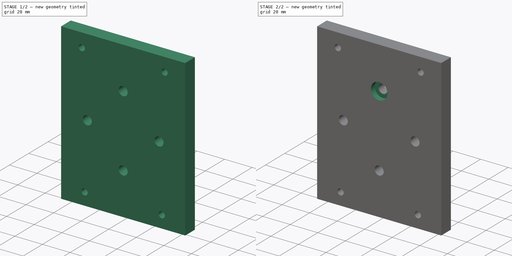
[diagram: build sequence overview — one tinted view per stage of 2, left to right]
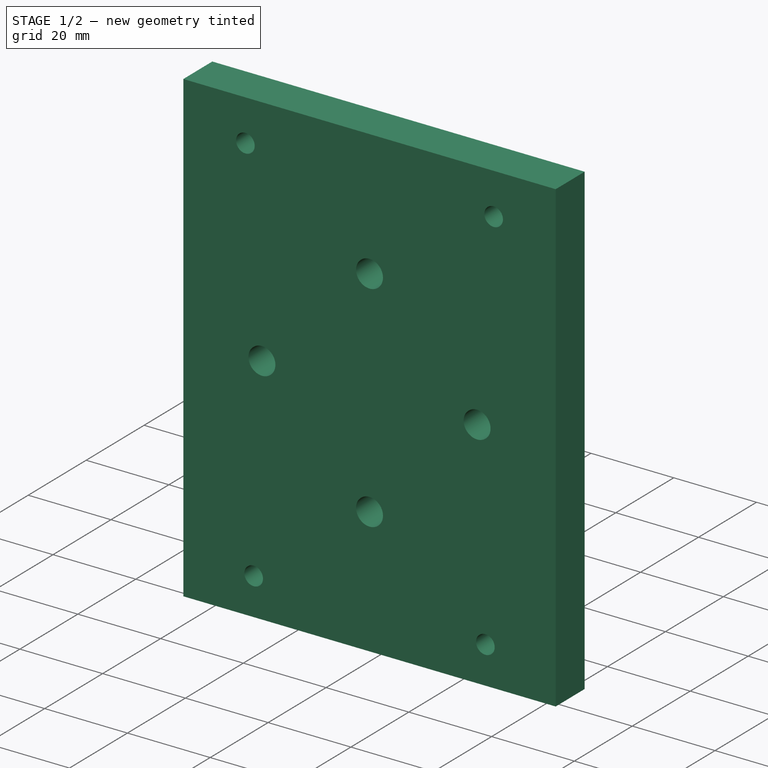
[diagram: stage 1 of 2 — iso view after this stage's code; geometry added in this stage tinted green]
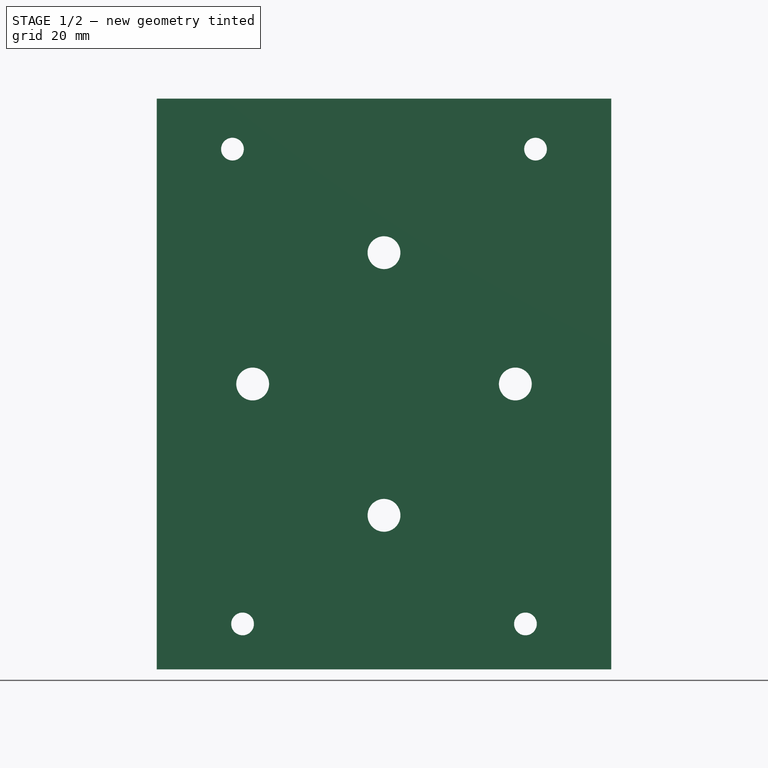
[diagram: stage 1 of 2 — front view after this stage's code; geometry added in this stage tinted green]
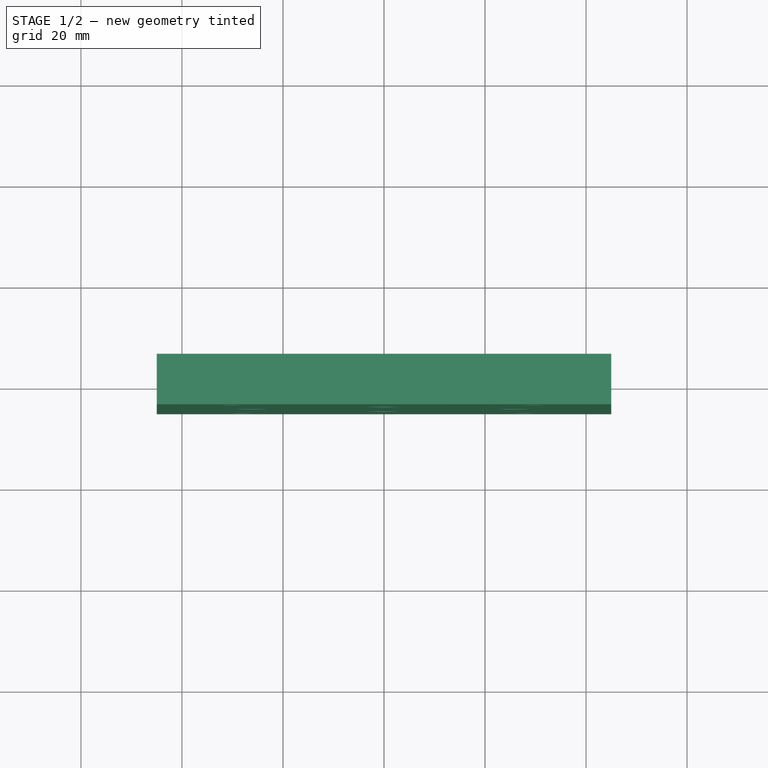
[diagram: stage 1 of 2 — top view after this stage's code; geometry added in this stage tinted green]
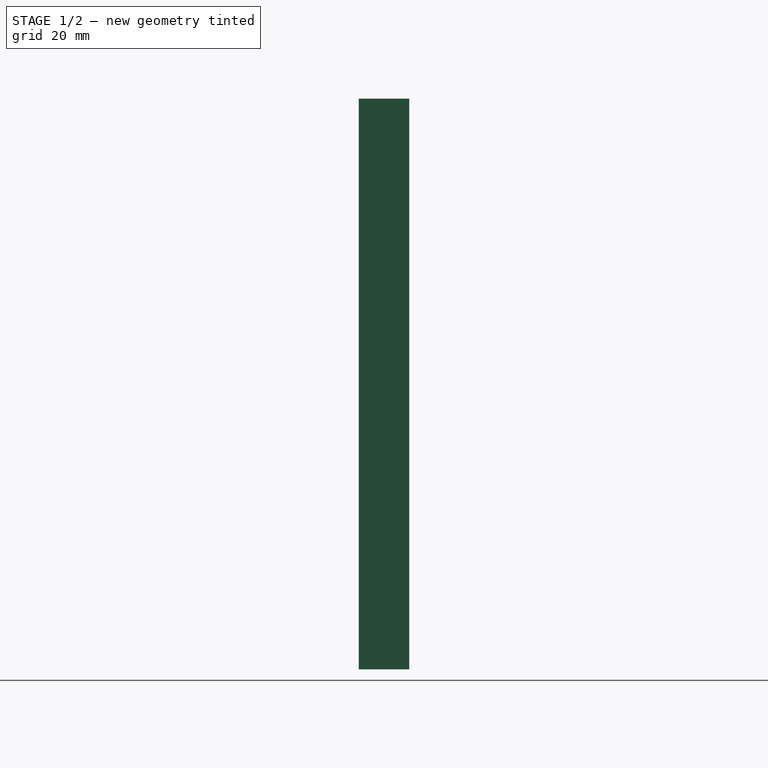
[diagram: stage 1 of 2 — right view after this stage's code; geometry added in this stage tinted green]
FCSTD DOCUMENT  (FreeCAD 0.16R6704 (Git))
Label: Adapterplatte Proxxon
License: All rights reserved
LicenseURL: http://en.wikipedia.org/wiki/All_rights_reserved
objects: Drawing::FeatureViewPython×24, Sketcher::SketchObject×3, PartDesign::Pocket×2, Drawing::FeatureViewPart×2, PartDesign::Pad×1, Drawing::FeaturePage×1
note: 9 computed .brp shape members not serialized (recipe doc carries the construction recipe); baked Part::Feature solids carry a one-line shape summary decoded from their .brp

FEATURE [Sketcher::SketchObject] Sketch
  sketch-geometry (4):
    g0: LineSegment StartX=-45 StartY=5 StartZ=0 EndX=45 EndY=5 EndZ=0
    g1: LineSegment StartX=45 StartY=5 StartZ=0 EndX=45 EndY=-5 EndZ=0
    g2: LineSegment StartX=45 StartY=-5 StartZ=0 EndX=-45 EndY=-5 EndZ=0
    g3: LineSegment StartX=-45 StartY=-5 StartZ=0 EndX=-45 EndY=5 EndZ=0
  constraints (12):
    c: Coincident(g0,g1)
    c: Coincident(g1,g2)
    c: Coincident(g2,g3)
    c: Coincident(g3,g0)
    c: Horizontal(g0)
    c: Horizontal(g2)
    c: Vertical(g1)
    c: Vertical(g3)
    c: DistanceX(g0,g0) = 90
    c: DistanceY(g1,g1) = 10
    c: Symmetric(g0,g0,g-2)
    c: Symmetric(g2,g0,g-1)
FEATURE [PartDesign::Pad] Pad
  Length = 113
  Length2 = 100
  Sketch = -> Sketch
  Type = 0
FEATURE [Sketcher::SketchObject] Sketch001
  ExternalGeometry = -> [Pad]
  Placement = pos=(0,-5,0) rot=(1,0,0;1.5708rad)
  Support = -> Pad [Face3]
  sketch-geometry (11):
    g0: LineSegment [constr] StartX=-30 StartY=103 StartZ=0 EndX=30 EndY=103 EndZ=0
    g1: LineSegment [constr] StartX=-28 StartY=9 StartZ=0 EndX=28 EndY=9 EndZ=0
    g2: Circle CenterX=-30 CenterY=103 CenterZ=0 NormalX=0 NormalY=0 NormalZ=1 Radius=2.25
    g3: Circle CenterX=30 CenterY=103 CenterZ=0 NormalX=0 NormalY=0 NormalZ=1 Radius=2.25
    g4: Circle CenterX=28 CenterY=9 CenterZ=0 NormalX=0 NormalY=0 NormalZ=1 Radius=2.25
    g5: Circle CenterX=-28 CenterY=9 CenterZ=0 NormalX=0 NormalY=0 NormalZ=1 Radius=2.25
    g6: LineSegment [constr] StartX=-45 StartY=56.5 StartZ=0 EndX=45 EndY=56.5 EndZ=0
    g7: Circle CenterX=0 CenterY=82.5 CenterZ=0 NormalX=0 NormalY=0 NormalZ=1 Radius=3.25
    g8: Circle CenterX=0 CenterY=30.5 CenterZ=0 NormalX=0 NormalY=0 NormalZ=1 Radius=3.25
    g9: Circle CenterX=26 CenterY=56.5 CenterZ=0 NormalX=0 NormalY=0 NormalZ=1 Radius=3.25
    g10: Circle CenterX=-26 CenterY=56.5 CenterZ=0 NormalX=0 NormalY=0 NormalZ=1 Radius=3.25
  constraints (29):
    c: Symmetric(g0,g0,g-2)
    c: Symmetric(g1,g1,g-2)
    c: DistanceX(g-1,g0) = 30
    c: DistanceX(g-1,g1) = 28
    c: DistanceY(g-1,g1) = 9
    c: Coincident(g2,g0)
    c: Coincident(g3,g0)
    c: Coincident(g4,g1)
    c: Coincident(g5,g1)
    c: Radius(g4) = 2.25
    c: Equal(g4,g5)
    c: Equal(g4,g3)
    c: Equal(g4,g2)
    c: DistanceY(g0,g-3) = 10
    c: Symmetric(g-3,g-3,g6)
    c: PointOnObject(g6,g-3)
    c: Symmetric(g6,g6,g-2)
    c: PointOnObject(g7,g-2)
    c: PointOnObject(g8,g-2)
    c: PointOnObject(g9,g6)
    c: PointOnObject(g10,g6)
    c: Radius(g10) = 3.25
    c: Equal(g10,g7)
    c: Equal(g10,g8)
    c: Equal(g10,g9)
    c: Symmetric(g8,g7,g6)
    c: Symmetric(g10,g9,g-2)
    c: DistanceY(g8,g6) = 26
    c: DistanceX(g10,g-1) = 26
FEATURE [PartDesign::Pocket] Pocket
  Length = 9
  Sketch = -> Sketch001
  Type = 1
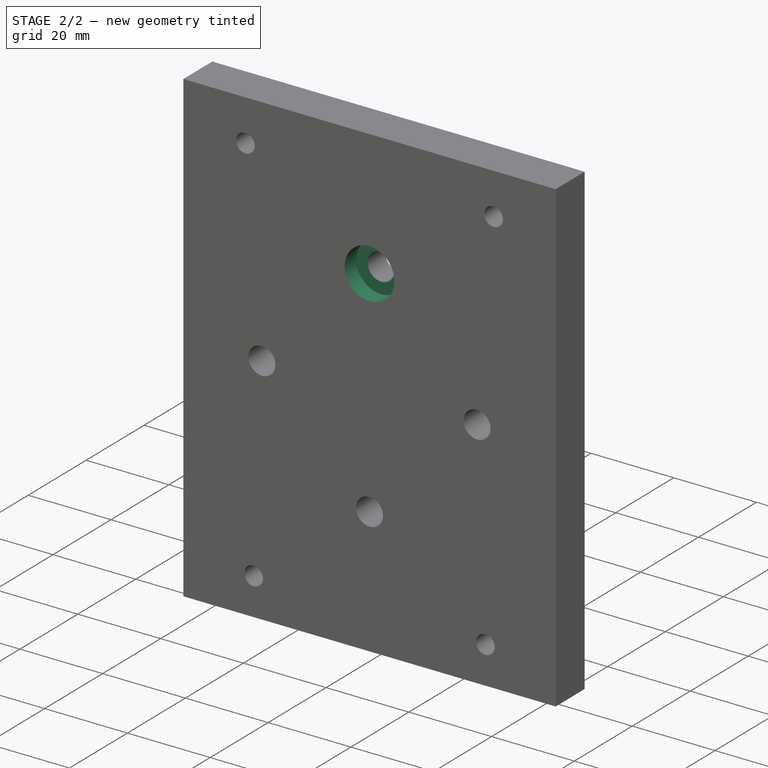
[diagram: stage 2 of 2 — iso view after this stage's code; geometry added in this stage tinted green]
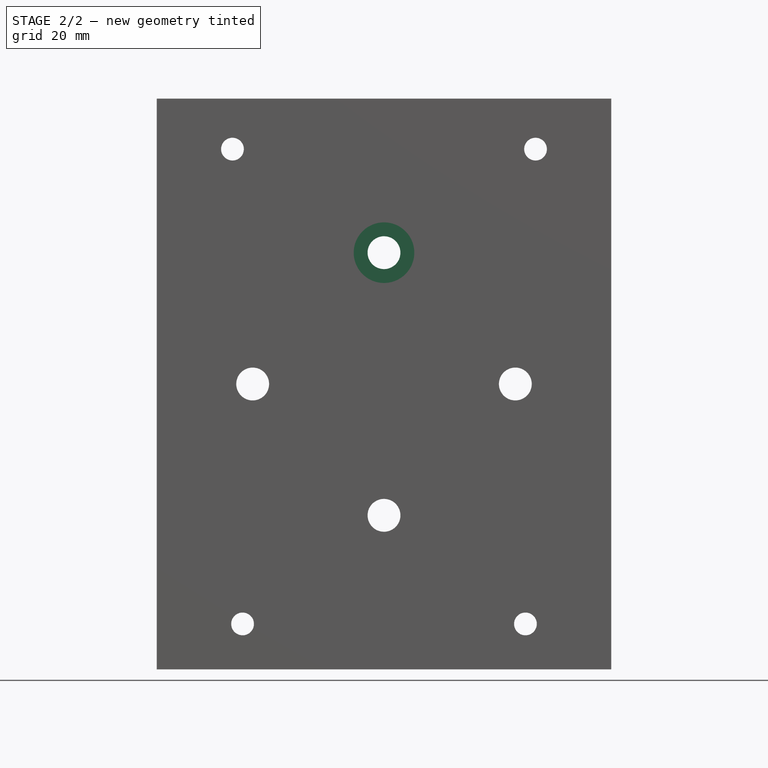
[diagram: stage 2 of 2 — front view after this stage's code; geometry added in this stage tinted green]
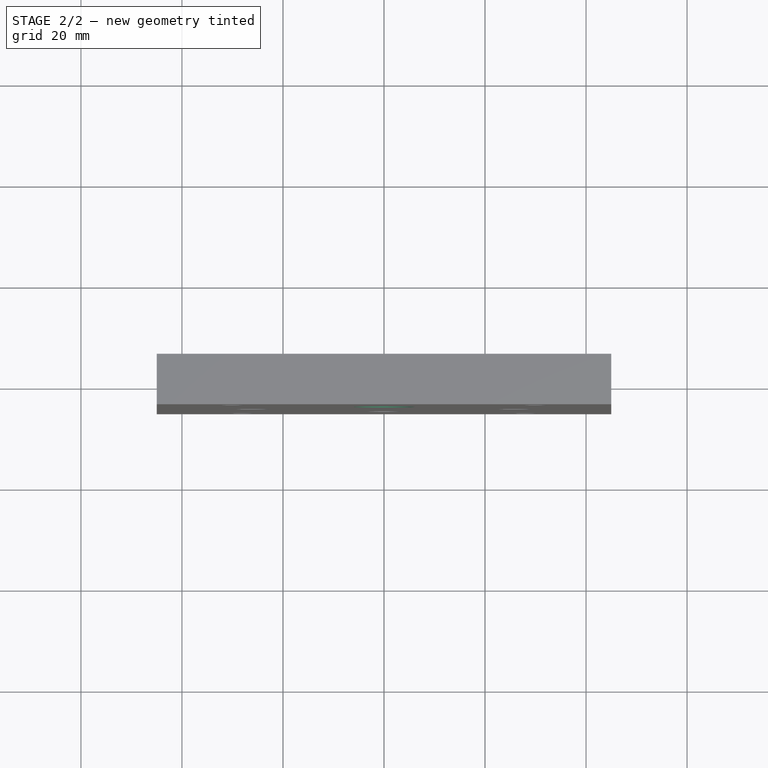
[diagram: stage 2 of 2 — top view after this stage's code; geometry added in this stage tinted green]
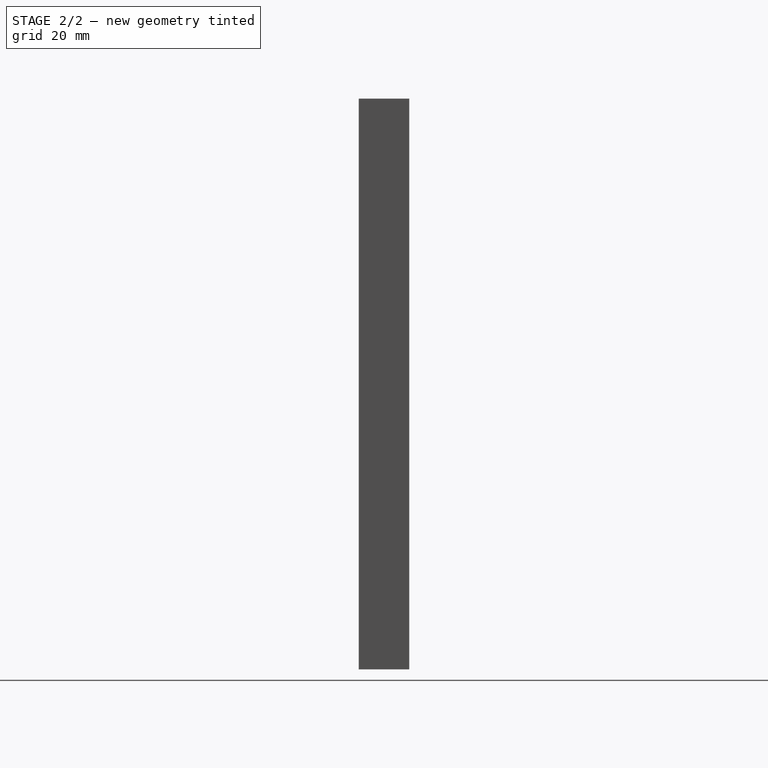
[diagram: stage 2 of 2 — right view after this stage's code; geometry added in this stage tinted green]
FEATURE [Sketcher::SketchObject] Sketch002
  ExternalGeometry = -> [Pocket]
  Placement = pos=(0,-5,0) rot=(1,0,0;1.5708rad)
  Support = -> Pocket [Face14]
  sketch-geometry (1):
    g0: Circle CenterX=0 CenterY=82.5 CenterZ=0 NormalX=0 NormalY=0 NormalZ=1 Radius=6
  constraints (2):
    c: Coincident(g0,g-3)
    c: Radius(g0) = 6
FEATURE [PartDesign::Pocket] Pocket001
  Length = 4
  Sketch = -> Sketch002
  Type = 0
FEATURE [Drawing::FeatureViewPart] Ortho  label="Ortho_0_0"
  Direction = (0,-1,0)
  HiddenWidth = 0.15
  LineWidth = 0.35
  Rotation = 90
  Scale = 1.5
  ShowHiddenLines = true
  ShowSmoothLines = false
  Source = -> Pocket001
  Tolerance = 0.05
  ViewResult = <g id="Ortho_0_0"\n   transform="rotate(90,116.5,189.75) translate(116.5,189.75) scale(1.5,1.5)"\n  >\n<g   stroke="rgb(0, 0, 0)"\n   stroke-width="0.1"\n   stroke-linecap="butt"\n   stroke-linejoin="miter"\n   stroke-dasharray="0.2,0.1"\n   fill="none"\n   transform="scale(1,-1)"\n  >\n<path id= "1" d=" M 0 -45 L -113 -45 " />\n<path id= "2" d=" M 0 -45 L 0 45 " />\n<path id= "3" d=" M -113 -45 L -113 45 " />\n<path id= "4" d=" M 0 45 L -113 45 " />\n<circle cx ="-103" cy ="30" r ="2.25" /><circle cx ="-56.5" cy ="26" r ="3.25" /><circle cx ="-9" cy ="28" r ="2.25" /><circle cx ="-56.5" cy ="-26" r ="3.25" /><circle cx ="-30.5" cy ="0" r ="3.25" /><circle cx ="-103" cy ="-30" r ="2.25" /><circle cx ="-82.5" cy ="0" r ="3.25" /><circle cx ="-9" cy ="-28" r ="2.25" /><circle cx ="-82.5" cy ="0" r ="6" /></g>\n<g   stroke="rgb(0, 0, 0)"\n   stroke-width="0.233333"\n   stroke-linecap="butt"\n   stroke-linejoin="miter"\n   fill="none"\n   transform="scale(1,-1)"\n  >\n<path id= "1" d=" M 0 -45 L -113 -45 " />\n<path id= "2" d=" M 0 45 L 0 -45 " />\n<path id= "3" d=" M -113 45 L -113 -45 " />\n<path id= "4" d=" M 0 45 L -113 45 " />\n<circle cx ="-103" cy ="30" r ="2.25" /><circle cx ="-56.5" cy ="26" r ="3.25" /><circle cx ="-9" cy ="28" r ="2.25" /><circle cx ="-56.5" cy ="-26" r ="3.25" /><circle cx ="-30.5" cy ="0" r ="3.25" /><circle cx ="-103" cy ="-30" r ="2.25" /><circle cx ="-82.5" cy ="0" r ="3.25" /><circle cx ="-9" cy ="-28" r ="2.25" /><circle cx ="-82.5" cy ="0" r ="6" /></g>\n</g>
  Visible = true
  X = 116.5
  Y = 189.75
FEATURE [Drawing::FeatureViewPart] Ortho001  label="Ortho_1_0"
  Direction = (1,0,0)
  HiddenWidth = 0.15
  LineWidth = 0.35
  Rotation = -90
  Scale = 1.5
  ShowHiddenLines = true
  ShowSmoothLines = false
  Source = -> Pocket001
  Tolerance = 0.05
  ViewResult = <blob: 12010 chars omitted>
  Visible = true
  X = 240.5
  Y = 189.75
FEATURE [Drawing::FeatureViewPython] dim001  # drawing view (typed FeaturePython)
  Rotation = 0
  ViewResult = <g> \n  <line x1="184.000000" y1="18.250000" x2="184.000000" y2="10.384620" style="stroke:rgb(0,0,255);stroke-width:0.30" />\n<line x1="49.000000" y1="18.250000" x2="49.000000" y2="10.384620" style="stroke:rgb(0,0,255);stroke-width:0.30" />\n<line x1="184.000000" y1="11.384620" x2="49.000000" y2="11.384620" style="stroke:rgb(0,0,255);stroke-width:0.30" /> \n  <polygon points="49.000000,11.384620 52.000000,12.384620 53.000000,11.384620 52.000000,10.384620" style="fill:rgb(0,0,255);stroke:rgb(0,0,255);stroke-width:0" /><polygon points="184.000000,11.384620 181.000000,10.384620 180.000000,11.384620 181.000000,12.384620" style="fill:rgb(0,0,255);stroke:rgb(0,0,255);stroke-width:0" /> \n  <text x="116.500000" y="9.384620" font-family="Verdana" font-size="3.6" fill="rgb(0,0,255)" text-anchor="middle" transform="rotate(0.000000 116.500000,9.384620)" >90</text> </g>
  Visible = true
  X = 0
  Y = 0
  arrowL1 = 3
  arrowL2 = 1
  arrowW = 2
  arrow_scheme = 0
  autoPlaceOffset = 2
  autoPlaceText = true
  click1_x = 80.9375
  click1_y = 11.3846
  click2_x = 80.9375
  click2_y = 11.3846
  comma_decimal_place = false
  dimension_line_overshoot = 1
  gap_datum_points = 2
  halfDimension_linear = false
  lineColor = rgb(0,0,255)
  strokeWidth = 0.3
  textFormat_linear = %(value)3.3f
  textRenderer_color = rgb(0,0,255)
  textRenderer_family = Verdana
  textRenderer_size = 3.6
  unit_custom_scale = 1
  unit_scheme = 0
FEATURE [Drawing::FeatureViewPython] dim002  # drawing view (typed FeaturePython)
  Rotation = 0
  ViewResult = <g> \n  <line x1="47.000000" y1="189.750000" x2="33.153860" y2="189.750000" style="stroke:rgb(0,0,255);stroke-width:0.30" />\n<line x1="47.000000" y1="20.250000" x2="33.153860" y2="20.250000" style="stroke:rgb(0,0,255);stroke-width:0.30" />\n<line x1="34.153860" y1="189.750000" x2="34.153860" y2="20.250000" style="stroke:rgb(0,0,255);stroke-width:0.30" /> \n  <polygon points="34.153860,20.250000 33.153860,23.250000 34.153860,24.250000 35.153860,23.250000" style="fill:rgb(0,0,255);stroke:rgb(0,0,255);stroke-width:0" /><polygon points="34.153860,189.750000 35.153860,186.750000 34.153860,185.750000 33.153860,186.750000" style="fill:rgb(0,0,255);stroke:rgb(0,0,255);stroke-width:0" /> \n  <text x="32.153860" y="105.000000" font-family="Verdana" font-size="3.6" fill="rgb(0,0,255)" text-anchor="middle" transform="rotate(-90.000000 32.153860,105.000000)" >113</text> </g>
  Visible = true
  X = 0
  Y = 0
  arrowL1 = 3
  arrowL2 = 1
  arrowW = 2
  arrow_scheme = 0
  autoPlaceOffset = 2
  autoPlaceText = true
  click1_x = 34.1539
  click1_y = 43.9375
  click2_x = 34.1539
  click2_y = 43.9375
  comma_decimal_place = false
  dimension_line_overshoot = 1
  gap_datum_points = 2
  halfDimension_linear = false
  lineColor = rgb(0,0,255)
  strokeWidth = 0.3
  textFormat_linear = %(value)3.3f
  textRenderer_color = rgb(0,0,255)
  textRenderer_family = Verdana
  textRenderer_size = 3.6
  unit_custom_scale = 1
  unit_scheme = 0
FEATURE [Drawing::FeatureViewPython] dim003  # drawing view (typed FeaturePython)
  Rotation = 0
  ViewResult = <g> \n  <line x1="248.000000" y1="18.250000" x2="248.000000" y2="12.341352" style="stroke:rgb(0,0,255);stroke-width:0.30" />\n<line x1="233.000000" y1="18.250000" x2="233.000000" y2="12.341352" style="stroke:rgb(0,0,255);stroke-width:0.30" />\n<line x1="248.000000" y1="13.341352" x2="233.000000" y2="13.341352" style="stroke:rgb(0,0,255);stroke-width:0.30" /> \n  <polygon points="233.000000,13.341352 236.000000,14.341352 237.000000,13.341352 236.000000,12.341352" style="fill:rgb(0,0,255);stroke:rgb(0,0,255);stroke-width:0" /><polygon points="248.000000,13.341352 245.000000,12.341352 244.000000,13.341352 245.000000,14.341352" style="fill:rgb(0,0,255);stroke:rgb(0,0,255);stroke-width:0" /> \n  <text x="240.500000" y="11.341352" font-family="Verdana" font-size="3.6" fill="rgb(0,0,255)" text-anchor="middle" transform="rotate(0.000000 240.500000,11.341352)" >10</text> </g>
  Visible = true
  X = 0
  Y = 0
  arrowL1 = 3
  arrowL2 = 1
  arrowW = 2
  arrow_scheme = 0
  autoPlaceOffset = 2
  autoPlaceText = true
  click1_x = 238.721
  click1_y = 13.3414
  click2_x = 238.721
  click2_y = 13.3414
  comma_decimal_place = false
  dimension_line_overshoot = 1
  gap_datum_points = 2
  halfDimension_linear = false
  lineColor = rgb(0,0,255)
  strokeWidth = 0.3
  textFormat_linear = %(value)3.3f
  textRenderer_color = rgb(0,0,255)
  textRenderer_family = Verdana
  textRenderer_size = 3.6
  unit_custom_scale = 1
  unit_scheme = 0
FEATURE [Drawing::FeatureViewPython] centerLines001  # drawing view (typed FeaturePython)
  Rotation = 0
  ViewResult = <g transform="scale(1.500000,1.500000)" stroke="rgb(0,0,255)"  stroke-width="0.200000" > <path d="M 47.666667,23.500000 L 47.666667,23.599369 "/>\n<path d="M 47.666667,23.500000 L 49.000000,23.500000 M 50.333333,23.500000 L 54.333333,23.500000 M 55.666667,23.500000 L 57.000000,23.500000 M 58.333333,23.500000 L 62.333333,23.500000 M 63.666667,23.500000 L 65.000000,23.500000 M 66.333333,23.500000 L 70.333333,23.500000 M 71.666667,23.500000 L 73.000000,23.500000 M 74.333333,23.500000 L 78.333333,23.500000 M 79.666667,23.500000 L 81.000000,23.500000 M 82.333333,23.500000 L 86.333333,23.500000 M 87.666667,23.500000 L 89.000000,23.500000 M 90.333333,23.500000 L 94.333333,23.500000 M 95.666667,23.500000 L 97.000000,23.500000 M 98.333333,23.500000 L 102.333333,23.500000 M 103.666667,23.500000 L 105.000000,23.500000 M 106.333333,23.500000 L 108.035301,23.500000 "/>\n<path d="M 47.666667,23.500000 L 47.666667,23.362189 "/>\n<path d="M 47.666667,23.500000 L 48.147456,23.500000 "/> </g> 
  Visible = true
  X = 0
  Y = 0
  centerLine_color = rgb(0,0,255)
  centerLine_len_dash = 6
  centerLine_len_dot = 2
  centerLine_len_gap = 2
  centerLine_width = 0.3
  click1_x = 162.053
  click1_y = 35.3991
  click2_x = 72.2212
  click2_y = 35.0433
FEATURE [Drawing::FeatureViewPython] centerLines002  # drawing view (typed FeaturePython)
  Rotation = 0
  ViewResult = <g transform="scale(1.500000,1.500000)" stroke="rgb(0,0,255)"  stroke-width="0.200000" > <path d="M 49.666667,117.500000 L 49.666667,117.048125 "/>\n<path d="M 49.666667,117.500000 L 51.000000,117.500000 M 52.333333,117.500000 L 56.333333,117.500000 M 57.666667,117.500000 L 59.000000,117.500000 M 60.333333,117.500000 L 64.333333,117.500000 M 65.666667,117.500000 L 67.000000,117.500000 M 68.333333,117.500000 L 72.333333,117.500000 M 73.666667,117.500000 L 75.000000,117.500000 M 76.333333,117.500000 L 80.333333,117.500000 M 81.666667,117.500000 L 83.000000,117.500000 M 84.333333,117.500000 L 88.333333,117.500000 M 89.666667,117.500000 L 91.000000,117.500000 M 92.333333,117.500000 L 96.333333,117.500000 M 97.666667,117.500000 L 99.000000,117.500000 M 100.333333,117.500000 L 104.333333,117.500000 M 105.666667,117.500000 L 106.256454,117.500000 "/>\n<path d="M 49.666667,117.500000 L 49.666667,117.285305 "/>\n<path d="M 49.666667,117.500000 L 49.214764,117.500000 "/> </g> 
  Visible = true
  X = 0
  Y = 0
  centerLine_color = rgb(0,0,255)
  centerLine_len_dash = 6
  centerLine_len_dot = 2
  centerLine_len_gap = 2
  centerLine_width = 0.3
  click1_x = 159.385
  click1_y = 175.572
  click2_x = 73.8221
  click2_y = 175.928
FEATURE [Drawing::FeatureViewPython] centerLines003  # drawing view (typed FeaturePython)
  Rotation = 0
  ViewResult = <g transform="scale(1.500000,1.500000)" stroke="rgb(0,0,255)"  stroke-width="0.200000" > <path d="M 51.666667,70.000000 L 51.666667,69.375029 "/>\n<path d="M 51.666667,70.000000 L 53.000000,70.000000 M 54.333333,70.000000 L 58.333333,70.000000 M 59.666667,70.000000 L 61.000000,70.000000 M 62.333333,70.000000 L 66.333333,70.000000 M 67.666667,70.000000 L 69.000000,70.000000 M 70.333333,70.000000 L 74.333333,70.000000 M 75.666667,70.000000 L 77.000000,70.000000 M 78.333333,70.000000 L 82.333333,70.000000 M 83.666667,70.000000 L 85.000000,70.000000 M 86.333333,70.000000 L 90.333333,70.000000 M 91.666667,70.000000 L 93.000000,70.000000 M 94.333333,70.000000 L 98.333333,70.000000 M 99.666667,70.000000 L 101.000000,70.000000 M 102.333333,70.000000 L 104.240428,70.000000 "/>\n<path d="M 51.666667,70.000000 L 51.666667,69.612208 "/>\n<path d="M 51.666667,70.000000 L 51.823739,70.000000 "/> </g> 
  Visible = true
  X = 0
  Y = 0
  centerLine_color = rgb(0,0,255)
  centerLine_len_dash = 6
  centerLine_len_dot = 2
  centerLine_len_gap = 2
  centerLine_width = 0.3
  click1_x = 156.361
  click1_y = 104.063
  click2_x = 77.7356
  click2_y = 104.418
FEATURE [Drawing::FeatureViewPython] centerLines004  # drawing view (typed FeaturePython)
  Rotation = 0
  ViewResult = <g transform="scale(1.500000,1.500000)" stroke="rgb(0,0,255)"  stroke-width="0.200000" > <path d="M 77.666667,44.000000 L 77.666667,45.333333 M 77.666667,46.666667 L 77.666667,50.666667 M 77.666667,52.000000 L 77.666667,53.333333 M 77.666667,54.666667 L 77.666667,58.666667 M 77.666667,60.000000 L 77.666667,61.333333 M 77.666667,62.666667 L 77.666667,66.666667 M 77.666667,68.000000 L 77.666667,69.333333 M 77.666667,70.666667 L 77.666667,74.666667 M 77.666667,76.000000 L 77.666667,77.333333 M 77.666667,78.666667 L 77.666667,82.666667 M 77.666667,84.000000 L 77.666667,85.333333 M 77.666667,86.666667 L 77.666667,90.666667 M 77.666667,92.000000 L 77.666667,93.333333 M 77.666667,94.666667 L 77.666667,95.701963 "/>\n<path d="M 77.666667,44.000000 L 78.269263,44.000000 "/>\n<path d="M 77.666667,44.000000 L 77.666667,45.333333 M 77.666667,46.666667 L 77.666667,50.666667 M 77.666667,52.000000 L 77.666667,53.333333 M 77.666667,54.666667 L 77.666667,58.666667 M 77.666667,60.000000 L 77.666667,61.333333 M 77.666667,62.666667 L 77.666667,66.666667 M 77.666667,68.000000 L 77.666667,69.333333 M 77.666667,70.666667 L 77.666667,74.666667 M 77.666667,76.000000 L 77.666667,77.333333 M 77.666667,78.666667 L 77.666667,82.666667 M 77.666667,84.000000 L 77.666667,85.333333 M 77.666667,86.666667 L 77.666667,90.666667 M 77.666667,92.000000 L 77.666667,93.333333 M 77.666667,94.666667 L 77.666667,95.701963 "/>\n<path d="M 77.666667,44.000000 L 78.269263,44.000000 "/> </g> 
  Visible = true
  X = 0
  Y = 0
  centerLine_color = rgb(0,0,255)
  centerLine_len_dash = 6
  centerLine_len_dot = 2
  centerLine_len_gap = 2
  centerLine_width = 0.3
  click1_x = 117.404
  click1_y = 143.553
  click2_x = 117.404
  click2_y = 143.553
FEATURE [Drawing::FeatureViewPython] dim004  # drawing view (typed FeaturePython)
  Rotation = 0
  ViewResult = <g> \n  <line x1="49.000000" y1="22.250000" x2="49.000000" y2="29.995204" style="stroke:rgb(0,0,255);stroke-width:0.30" />\n<line x1="71.500000" y1="33.250000" x2="71.500000" y2="27.995204" style="stroke:rgb(0,0,255);stroke-width:0.30" />\n<line x1="49.000000" y1="28.995204" x2="71.500000" y2="28.995204" style="stroke:rgb(0,0,255);stroke-width:0.30" /> \n  <polygon points="71.500000,28.995204 68.500000,27.995204 67.500000,28.995204 68.500000,29.995204" style="fill:rgb(0,0,255);stroke:rgb(0,0,255);stroke-width:0" /><polygon points="49.000000,28.995204 52.000000,29.995204 53.000000,28.995204 52.000000,27.995204" style="fill:rgb(0,0,255);stroke:rgb(0,0,255);stroke-width:0" /> \n  <text x="60.250000" y="26.995204" font-family="Verdana" font-size="3.6" fill="rgb(0,0,255)" text-anchor="middle" transform="rotate(0.000000 60.250000,26.995204)" >15</text> </g>
  Visible = true
  X = 0
  Y = 0
  arrowL1 = 3
  arrowL2 = 1
  arrowW = 2
  arrow_scheme = 0
  autoPlaceOffset = 2
  autoPlaceText = true
  click1_x = 66.5289
  click1_y = 28.9952
  click2_x = 66.5289
  click2_y = 28.9952
  comma_decimal_place = false
  dimension_line_overshoot = 1
  gap_datum_points = 2
  halfDimension_linear = false
  lineColor = rgb(0,0,255)
  strokeWidth = 0.3
  textFormat_linear = %(value)3.3f
  textRenderer_color = rgb(0,0,255)
  textRenderer_family = Verdana
  textRenderer_size = 3.6
  unit_custom_scale = 1
  unit_scheme = 0
FEATURE [Drawing::FeatureViewPython] dim005  # drawing view (typed FeaturePython)
  Rotation = 0
  ViewResult = <g> \n  <line x1="159.500000" y1="35.250000" x2="148.601023" y2="35.250000" style="stroke:rgb(0,0,255);stroke-width:0.30" />\n<line x1="182.000000" y1="20.250000" x2="148.601023" y2="20.250000" style="stroke:rgb(0,0,255);stroke-width:0.30" />\n<line x1="149.601023" y1="35.250000" x2="149.601023" y2="20.250000" style="stroke:rgb(0,0,255);stroke-width:0.30" /> \n  <polygon points="149.601023,20.250000 148.601023,23.250000 149.601023,24.250000 150.601023,23.250000" style="fill:rgb(0,0,255);stroke:rgb(0,0,255);stroke-width:0" /><polygon points="149.601023,35.250000 150.601023,32.250000 149.601023,31.250000 148.601023,32.250000" style="fill:rgb(0,0,255);stroke:rgb(0,0,255);stroke-width:0" /> \n  <text x="147.601023" y="27.750000" font-family="Verdana" font-size="3.6" fill="rgb(0,0,255)" text-anchor="middle" transform="rotate(-90.000000 147.601023,27.750000)" >10</text> </g>
  Visible = true
  X = 0
  Y = 0
  arrowL1 = 3
  arrowL2 = 1
  arrowW = 2
  arrow_scheme = 0
  autoPlaceOffset = 2
  autoPlaceText = true
  click1_x = 149.601
  click1_y = 31.8414
  click2_x = 149.601
  click2_y = 31.8414
  comma_decimal_place = false
  dimension_line_overshoot = 1
  gap_datum_points = 2
  halfDimension_linear = false
  lineColor = rgb(0,0,255)
  strokeWidth = 0.3
  textFormat_linear = %(value)3.3f
  textRenderer_color = rgb(0,0,255)
  textRenderer_family = Verdana
  textRenderer_size = 3.6
  unit_custom_scale = 1
  unit_scheme = 0
FEATURE [Drawing::FeatureViewPython] dim006  # drawing view (typed FeaturePython)
  Rotation = 0
  ViewResult = <g> \n  <line x1="155.500000" y1="107.000000" x2="155.500000" y2="106.129851" style="stroke:rgb(0,0,255);stroke-width:0.30" />\n<line x1="184.000000" y1="187.750000" x2="184.000000" y2="104.129851" style="stroke:rgb(0,0,255);stroke-width:0.30" />\n<line x1="155.500000" y1="105.129851" x2="184.000000" y2="105.129851" style="stroke:rgb(0,0,255);stroke-width:0.30" /> \n  <polygon points="184.000000,105.129851 181.000000,104.129851 180.000000,105.129851 181.000000,106.129851" style="fill:rgb(0,0,255);stroke:rgb(0,0,255);stroke-width:0" /><polygon points="155.500000,105.129851 158.500000,106.129851 159.500000,105.129851 158.500000,104.129851" style="fill:rgb(0,0,255);stroke:rgb(0,0,255);stroke-width:0" /> \n  <text x="169.750000" y="103.129851" font-family="Verdana" font-size="3.6" fill="rgb(0,0,255)" text-anchor="middle" transform="rotate(0.000000 169.750000,103.129851)" >19</text> </g>
  Visible = true
  X = 0
  Y = 0
  arrowL1 = 3
  arrowL2 = 1
  arrowW = 2
  arrow_scheme = 0
  autoPlaceOffset = 2
  autoPlaceText = true
  click1_x = 175.928
  click1_y = 105.13
  click2_x = 175.928
  click2_y = 105.13
  comma_decimal_place = false
  dimension_line_overshoot = 1
  gap_datum_points = 2
  halfDimension_linear = false
  lineColor = rgb(0,0,255)
  strokeWidth = 0.3
  textFormat_linear = %(value)3.3f
  textRenderer_color = rgb(0,0,255)
  textRenderer_family = Verdana
  textRenderer_size = 3.6
  unit_custom_scale = 1
  unit_scheme = 0
FEATURE [Drawing::FeatureViewPython] dim007  # drawing view (typed FeaturePython)
  Rotation = 0
  ViewResult = <g> \n  <line x1="153.500000" y1="105.000000" x2="138.105827" y2="105.000000" style="stroke:rgb(0,0,255);stroke-width:0.30" />\n<line x1="182.000000" y1="189.750000" x2="138.105827" y2="189.750000" style="stroke:rgb(0,0,255);stroke-width:0.30" />\n<line x1="139.105827" y1="105.000000" x2="139.105827" y2="189.750000" style="stroke:rgb(0,0,255);stroke-width:0.30" /> \n  <polygon points="139.105827,189.750000 140.105827,186.750000 139.105827,185.750000 138.105827,186.750000" style="fill:rgb(0,0,255);stroke:rgb(0,0,255);stroke-width:0" /><polygon points="139.105827,105.000000 138.105827,108.000000 139.105827,109.000000 140.105827,108.000000" style="fill:rgb(0,0,255);stroke:rgb(0,0,255);stroke-width:0" /> \n  <text x="137.105827" y="147.375000" font-family="Verdana" font-size="3.6" fill="rgb(0,0,255)" text-anchor="middle" transform="rotate(-90.000000 137.105827,147.375000)" >56.5</text> </g>
  Visible = true
  X = 0
  Y = 0
  arrowL1 = 3
  arrowL2 = 1
  arrowW = 2
  arrow_scheme = 0
  autoPlaceOffset = 2
  autoPlaceText = true
  click1_x = 139.106
  click1_y = 154.76
  click2_x = 139.106
  click2_y = 154.76
  comma_decimal_place = false
  dimension_line_overshoot = 1
  gap_datum_points = 2
  halfDimension_linear = false
  lineColor = rgb(0,0,255)
  strokeWidth = 0.3
  textFormat_linear = %(value)3.3f
  textRenderer_color = rgb(0,0,255)
  textRenderer_family = Verdana
  textRenderer_size = 3.6
  unit_custom_scale = 1
  unit_scheme = 0
FEATURE [Drawing::FeatureViewPython] dim008  # drawing view (typed FeaturePython)
  Rotation = 0
  ViewResult = <g> \n  <line x1="116.500000" y1="142.000000" x2="116.500000" y2="128.677938" style="stroke:rgb(0,0,255);stroke-width:0.30" />\n<line x1="184.000000" y1="187.750000" x2="184.000000" y2="128.677938" style="stroke:rgb(0,0,255);stroke-width:0.30" />\n<line x1="116.500000" y1="129.677938" x2="184.000000" y2="129.677938" style="stroke:rgb(0,0,255);stroke-width:0.30" /> \n  <polygon points="184.000000,129.677938 181.000000,128.677938 180.000000,129.677938 181.000000,130.677938" style="fill:rgb(0,0,255);stroke:rgb(0,0,255);stroke-width:0" /><polygon points="116.500000,129.677938 119.500000,130.677938 120.500000,129.677938 119.500000,128.677938" style="fill:rgb(0,0,255);stroke:rgb(0,0,255);stroke-width:0" /> \n  <text x="150.250000" y="127.677938" font-family="Verdana" font-size="3.6" fill="rgb(0,0,255)" text-anchor="middle" transform="rotate(0.000000 150.250000,127.677938)" >45</text> </g>
  Visible = true
  X = 0
  Y = 0
  arrowL1 = 3
  arrowL2 = 1
  arrowW = 2
  arrow_scheme = 0
  autoPlaceOffset = 2
  autoPlaceText = true
  click1_x = 139.106
  click1_y = 129.678
  click2_x = 139.106
  click2_y = 129.678
  comma_decimal_place = false
  dimension_line_overshoot = 1
  gap_datum_points = 2
  halfDimension_linear = false
  lineColor = rgb(0,0,255)
  strokeWidth = 0.3
  textFormat_linear = %(value)3.3f
  textRenderer_color = rgb(0,0,255)
  textRenderer_family = Verdana
  textRenderer_size = 3.6
  unit_custom_scale = 1
  unit_scheme = 0
FEATURE [Drawing::FeatureViewPython] dim009  # drawing view (typed FeaturePython)
  Rotation = 0
  ViewResult = <g> \n  <line x1="114.500000" y1="144.000000" x2="114.980817" y2="144.000000" style="stroke:rgb(0,0,255);stroke-width:0.30" />\n<line x1="182.000000" y1="189.750000" x2="114.980817" y2="189.750000" style="stroke:rgb(0,0,255);stroke-width:0.30" />\n<line x1="115.980817" y1="144.000000" x2="115.980817" y2="189.750000" style="stroke:rgb(0,0,255);stroke-width:0.30" /> \n  <polygon points="115.980817,189.750000 116.980817,186.750000 115.980817,185.750000 114.980817,186.750000" style="fill:rgb(0,0,255);stroke:rgb(0,0,255);stroke-width:0" /><polygon points="115.980817,144.000000 114.980817,147.000000 115.980817,148.000000 116.980817,147.000000" style="fill:rgb(0,0,255);stroke:rgb(0,0,255);stroke-width:0" /> \n  <text x="113.980817" y="166.875000" font-family="Verdana" font-size="3.6" fill="rgb(0,0,255)" text-anchor="middle" transform="rotate(-90.000000 113.980817,166.875000)" >30.5</text> </g>
  Visible = true
  X = 0
  Y = 0
  arrowL1 = 3
  arrowL2 = 1
  arrowW = 2
  arrow_scheme = 0
  autoPlaceOffset = 2
  autoPlaceText = true
  click1_x = 115.981
  click1_y = 164.365
  click2_x = 115.981
  click2_y = 164.365
  comma_decimal_place = false
  dimension_line_overshoot = 1
  gap_datum_points = 2
  halfDimension_linear = false
  lineColor = rgb(0,0,255)
  strokeWidth = 0.3
  textFormat_linear = %(value)3.3f
  textRenderer_color = rgb(0,0,255)
  textRenderer_family = Verdana
  textRenderer_size = 3.6
  unit_custom_scale = 1
  unit_scheme = 0
FEATURE [Drawing::FeatureViewPython] dim010  # drawing view (typed FeaturePython)
  Rotation = 0
  ViewResult = <g> \n  <line x1="114.500000" y1="66.000000" x2="114.802932" y2="66.000000" style="stroke:rgb(0,0,255);stroke-width:0.30" />\n<line x1="182.000000" y1="20.250000" x2="114.802932" y2="20.250000" style="stroke:rgb(0,0,255);stroke-width:0.30" />\n<line x1="115.802932" y1="66.000000" x2="115.802932" y2="20.250000" style="stroke:rgb(0,0,255);stroke-width:0.30" /> \n  <polygon points="115.802932,20.250000 114.802932,23.250000 115.802932,24.250000 116.802932,23.250000" style="fill:rgb(0,0,255);stroke:rgb(0,0,255);stroke-width:0" /><polygon points="115.802932,66.000000 116.802932,63.000000 115.802932,62.000000 114.802932,63.000000" style="fill:rgb(0,0,255);stroke:rgb(0,0,255);stroke-width:0" /> \n  <text x="113.802932" y="43.125000" font-family="Verdana" font-size="3.6" fill="rgb(0,0,255)" text-anchor="middle" transform="rotate(-90.000000 113.802932,43.125000)" >30.5</text> </g>
  Visible = true
  X = 0
  Y = 0
  arrowL1 = 3
  arrowL2 = 1
  arrowW = 2
  arrow_scheme = 0
  autoPlaceOffset = 2
  autoPlaceText = true
  click1_x = 115.803
  click1_y = 46.4279
  click2_x = 115.803
  click2_y = 46.4279
  comma_decimal_place = false
  dimension_line_overshoot = 1
  gap_datum_points = 2
  halfDimension_linear = false
  lineColor = rgb(0,0,255)
  strokeWidth = 0.3
  textFormat_linear = %(value)3.3f
  textRenderer_color = rgb(0,0,255)
  textRenderer_family = Verdana
  textRenderer_size = 3.6
  unit_custom_scale = 1
  unit_scheme = 0
FEATURE [Drawing::FeatureViewPython] dim011  # drawing view (typed FeaturePython)
  Rotation = 0
  ViewResult = <g> \n  <line x1="77.500000" y1="107.000000" x2="77.500000" y2="106.307736" style="stroke:rgb(0,0,255);stroke-width:0.30" />\n<line x1="49.000000" y1="187.750000" x2="49.000000" y2="104.307736" style="stroke:rgb(0,0,255);stroke-width:0.30" />\n<line x1="77.500000" y1="105.307736" x2="49.000000" y2="105.307736" style="stroke:rgb(0,0,255);stroke-width:0.30" /> \n  <polygon points="49.000000,105.307736 52.000000,106.307736 53.000000,105.307736 52.000000,104.307736" style="fill:rgb(0,0,255);stroke:rgb(0,0,255);stroke-width:0" /><polygon points="77.500000,105.307736 74.500000,104.307736 73.500000,105.307736 74.500000,106.307736" style="fill:rgb(0,0,255);stroke:rgb(0,0,255);stroke-width:0" /> \n  <text x="63.250000" y="103.307736" font-family="Verdana" font-size="3.6" fill="rgb(0,0,255)" text-anchor="middle" transform="rotate(0.000000 63.250000,103.307736)" >19</text> </g>
  Visible = true
  X = 0
  Y = 0
  arrowL1 = 3
  arrowL2 = 1
  arrowW = 2
  arrow_scheme = 0
  autoPlaceOffset = 2
  autoPlaceText = true
  click1_x = 66.1731
  click1_y = 105.308
  click2_x = 66.1731
  click2_y = 105.308
  comma_decimal_place = false
  dimension_line_overshoot = 1
  gap_datum_points = 2
  halfDimension_linear = false
  lineColor = rgb(0,0,255)
  strokeWidth = 0.3
  textFormat_linear = %(value)3.3f
  textRenderer_color = rgb(0,0,255)
  textRenderer_family = Verdana
  textRenderer_size = 3.6
  unit_custom_scale = 1
  unit_scheme = 0
FEATURE [Drawing::FeatureViewPython] dim012  # drawing view (typed FeaturePython)
  Rotation = 0
  ViewResult = <g> \n  <line x1="156.500000" y1="176.250000" x2="149.846216" y2="176.250000" style="stroke:rgb(0,0,255);stroke-width:0.30" />\n<line x1="182.000000" y1="189.750000" x2="149.846216" y2="189.750000" style="stroke:rgb(0,0,255);stroke-width:0.30" />\n<line x1="150.846216" y1="176.250000" x2="150.846216" y2="189.750000" style="stroke:rgb(0,0,255);stroke-width:0.30" /> \n  <polygon points="150.846216,189.750000 151.846216,186.750000 150.846216,185.750000 149.846216,186.750000" style="fill:rgb(0,0,255);stroke:rgb(0,0,255);stroke-width:0" /><polygon points="150.846216,176.250000 149.846216,179.250000 150.846216,180.250000 151.846216,179.250000" style="fill:rgb(0,0,255);stroke:rgb(0,0,255);stroke-width:0" /> \n  <text x="148.846216" y="183.000000" font-family="Verdana" font-size="3.6" fill="rgb(0,0,255)" text-anchor="middle" transform="rotate(-90.000000 148.846216,183.000000)" >9</text> </g>
  Visible = true
  X = 0
  Y = 0
  arrowL1 = 3
  arrowL2 = 1
  arrowW = 2
  arrow_scheme = 0
  autoPlaceOffset = 2
  autoPlaceText = true
  click1_x = 150.846
  click1_y = 184.289
  click2_x = 150.846
  click2_y = 184.289
  comma_decimal_place = false
  dimension_line_overshoot = 1
  gap_datum_points = 2
  halfDimension_linear = false
  lineColor = rgb(0,0,255)
  strokeWidth = 0.3
  textFormat_linear = %(value)3.3f
  textRenderer_color = rgb(0,0,255)
  textRenderer_family = Verdana
  textRenderer_size = 3.6
  unit_custom_scale = 1
  unit_scheme = 0
FEATURE [Drawing::FeatureViewPython] dim013  # drawing view (typed FeaturePython)
  Rotation = 0
  ViewResult = <g> \n  <line x1="74.500000" y1="178.250000" x2="74.500000" y2="177.265087" style="stroke:rgb(0,0,255);stroke-width:0.30" />\n<line x1="49.000000" y1="187.750000" x2="49.000000" y2="175.265087" style="stroke:rgb(0,0,255);stroke-width:0.30" />\n<line x1="74.500000" y1="176.265087" x2="49.000000" y2="176.265087" style="stroke:rgb(0,0,255);stroke-width:0.30" /> \n  <polygon points="49.000000,176.265087 52.000000,177.265087 53.000000,176.265087 52.000000,175.265087" style="fill:rgb(0,0,255);stroke:rgb(0,0,255);stroke-width:0" /><polygon points="74.500000,176.265087 71.500000,175.265087 70.500000,176.265087 71.500000,177.265087" style="fill:rgb(0,0,255);stroke:rgb(0,0,255);stroke-width:0" /> \n  <text x="61.750000" y="174.265087" font-family="Verdana" font-size="3.6" fill="rgb(0,0,255)" text-anchor="middle" transform="rotate(0.000000 61.750000,174.265087)" >17</text> </g>
  Visible = true
  X = 0
  Y = 0
  arrowL1 = 3
  arrowL2 = 1
  arrowW = 2
  arrow_scheme = 0
  autoPlaceOffset = 2
  autoPlaceText = true
  click1_x = 57.6891
  click1_y = 176.265
  click2_x = 57.6891
  click2_y = 176.265
  comma_decimal_place = false
  dimension_line_overshoot = 1
  gap_datum_points = 2
  halfDimension_linear = false
  lineColor = rgb(0,0,255)
  strokeWidth = 0.3
  textFormat_linear = %(value)3.3f
  textRenderer_color = rgb(0,0,255)
  textRenderer_family = Verdana
  textRenderer_size = 3.6
  unit_custom_scale = 1
  unit_scheme = 0
FEATURE [Drawing::FeatureViewPython] dim014  # drawing view (typed FeaturePython)
  Rotation = 0
  ViewResult = <g> \n  <line x1="158.500000" y1="174.250000" x2="158.500000" y2="175.031723" style="stroke:rgb(0,0,255);stroke-width:0.30" />\n<line x1="184.000000" y1="187.750000" x2="184.000000" y2="175.031723" style="stroke:rgb(0,0,255);stroke-width:0.30" />\n<line x1="158.500000" y1="176.031723" x2="184.000000" y2="176.031723" style="stroke:rgb(0,0,255);stroke-width:0.30" /> \n  <polygon points="184.000000,176.031723 181.000000,175.031723 180.000000,176.031723 181.000000,177.031723" style="fill:rgb(0,0,255);stroke:rgb(0,0,255);stroke-width:0" /><polygon points="158.500000,176.031723 161.500000,177.031723 162.500000,176.031723 161.500000,175.031723" style="fill:rgb(0,0,255);stroke:rgb(0,0,255);stroke-width:0" /> \n  <text x="171.250000" y="174.031723" font-family="Verdana" font-size="3.6" fill="rgb(0,0,255)" text-anchor="middle" transform="rotate(0.000000 171.250000,174.031723)" >17</text> </g>
  Visible = true
  X = 0
  Y = 0
  arrowL1 = 3
  arrowL2 = 1
  arrowW = 2
  arrow_scheme = 0
  autoPlaceOffset = 2
  autoPlaceText = true
  click1_x = 180.87
  click1_y = 176.032
  click2_x = 180.87
  click2_y = 176.032
  comma_decimal_place = false
  dimension_line_overshoot = 1
  gap_datum_points = 2
  halfDimension_linear = false
  lineColor = rgb(0,0,255)
  strokeWidth = 0.3
  textFormat_linear = %(value)3.3f
  textRenderer_color = rgb(0,0,255)
  textRenderer_family = Verdana
  textRenderer_size = 3.6
  unit_custom_scale = 1
  unit_scheme = 0
FEATURE [Drawing::FeatureViewPython] text001  # drawing view (typed FeaturePython)
  Rotation = 0
  ViewResult = <g> <text x="258.062809" y="130.000000" font-family="inherit" font-size="5" fill="rgb(0,0,0)" text-anchor="inherit" transform="rotate(0.000000 258.062809,130.000000)" >Medium</text> </g>
  Visible = true
  X = 0
  Y = 0
  click1_x = 258.063
  click1_y = 130
  rotation = 0
  text = Medium
  textRenderer_addText_color = rgb(0,0,0)
  textRenderer_addText_family = inherit
  textRenderer_addText_size = 5
FEATURE [Drawing::FeatureViewPython] grabPoint001  # drawing view (typed FeaturePython)
  Rotation = 0
  ViewResult = <g> <line x1="241.220815149" y1="119.342730618" x2="241.220815149" y2="119.342730618" style="stroke:rgb(0,0,0);stroke-width:0.01" /> </g> 
  Visible = true
  X = 0
  Y = 0
  click1_x = 241.221
  click1_y = 119.343
FEATURE [Drawing::FeatureViewPython] weld001  # drawing view (typed FeaturePython)
  Rotation = 0
  ViewResult = <g   >\n<line x1="256.432939" y1="131.295113" x2="241.220815" y2="119.342731" style="stroke:rgb(0,0,255);stroke-width:0.30" />\n<polygon points="241.220815,119.342731 242.961949,121.982514 244.366089,121.814017 244.197592,120.409877" style="fill:rgb(0,0,255);stroke:rgb(0,0,255);stroke-width:0" />\n<line x1="256.432939" y1="131.295113" x2="275.810286" y2="131.295113" style="stroke:rgb(0,0,255);stroke-width:0.30" />\n</g> 
  Visible = true
  X = 0
  Y = 0
  arrowL1 = 3
  arrowL2 = 1
  arrowW = 2
  click1_x = 256.433
  click1_y = 131.295
  click2_x = 275.81
  click2_y = 131.476
  lineColor = rgb(0,0,255)
  strokeWidth = 0.3
  textRenderer_color = rgb(0,0,255)
  textRenderer_family = Verdana
  textRenderer_size = 3.6
FEATURE [Drawing::FeatureViewPython] dia001  # drawing view (typed FeaturePython)
  Rotation = 0
  ViewResult = <g>  <circle cx ="71.500000" cy ="35.250000" r="0.500000" stroke="none" fill="rgb(0,0,255)" /> \n<line x1="77.557724" y1="41.269248" x2="69.105924" y2="32.871130" style="stroke:rgb(0,0,255);stroke-width:0.30" />\n<polygon points="73.894076,37.628870 75.317294,40.452777 76.731500,40.448272 76.726995,39.034065" style="fill:rgb(0,0,255);stroke:rgb(0,0,255);stroke-width:0" />\n<polygon points="69.105924,32.871130 67.682706,30.047223 66.268500,30.051728 66.273005,31.465935" style="fill:rgb(0,0,255);stroke:rgb(0,0,255);stroke-width:0" />\n<line x1="77.557724" y1="41.269248" x2="89.831768" y2="41.269248" style="stroke:rgb(0,0,255);stroke-width:0.30" />\n<text x="83.694746" y="39.269248" font-family="Verdana" font-size="3.6" fill="rgb(0,0,255)" text-anchor="middle" transform="rotate(0.000000 83.694746,39.269248)" >Ø4.5</text> </g>
  Visible = true
  X = 0
  Y = 0
  arrowL1 = 3
  arrowL2 = 1
  arrowW = 2
  arrow_scheme = 0
  autoPlaceOffset = 2
  autoPlaceText = true
  centerPointDia = 1
  click1_x = 77.5577
  click1_y = 41.2692
  click2_x = 89.8318
  click2_y = 42.5144
  click3_x = 89.8318
  click3_y = 42.5144
  comma_decimal_place = false
  lineColor = rgb(0,0,255)
  strokeWidth = 0.3
  textFormat_circular = Ø%(value)3.3f
  textRenderer_color = rgb(0,0,255)
  textRenderer_family = Verdana
  textRenderer_size = 3.6
  unit_custom_scale = 1
  unit_scheme = 0
FEATURE [Drawing::FeatureViewPython] dia002  # drawing view (typed FeaturePython)
  Rotation = 0
  ViewResult = <g>  <circle cx ="116.500000" cy ="66.000000" r="0.500000" stroke="none" fill="rgb(0,0,255)" /> \n<line x1="126.298129" y1="74.533685" x2="109.713207" y2="60.089040" style="stroke:rgb(0,0,255);stroke-width:0.30" />\n<polygon points="123.286793,71.910960 121.681302,69.186552 120.270440,69.283867 120.367755,70.694728" style="fill:rgb(0,0,255);stroke:rgb(0,0,255);stroke-width:0" />\n<polygon points="109.713207,60.089040 111.318698,62.813448 112.729560,62.716133 112.632245,61.305272" style="fill:rgb(0,0,255);stroke:rgb(0,0,255);stroke-width:0" />\n<line x1="126.298129" y1="74.533685" x2="137.504864" y2="74.533685" style="stroke:rgb(0,0,255);stroke-width:0.30" />\n<text x="131.901497" y="72.533685" font-family="Verdana" font-size="3.6" fill="rgb(0,0,255)" text-anchor="middle" transform="rotate(0.000000 131.901497,72.533685)" >Ø12</text> </g>
  Visible = true
  X = 0
  Y = 0
  arrowL1 = 3
  arrowL2 = 1
  arrowW = 2
  arrow_scheme = 0
  autoPlaceOffset = 2
  autoPlaceText = true
  centerPointDia = 1
  click1_x = 126.298
  click1_y = 74.5337
  click2_x = 137.505
  click2_y = 74.7116
  click3_x = 137.505
  click3_y = 74.7116
  comma_decimal_place = false
  lineColor = rgb(0,0,255)
  strokeWidth = 0.3
  textFormat_circular = Ø%(value)3.3f
  textRenderer_color = rgb(0,0,255)
  textRenderer_family = Verdana
  textRenderer_size = 3.6
  unit_custom_scale = 1
  unit_scheme = 0
FEATURE [Drawing::FeatureViewPython] dia003  # drawing view (typed FeaturePython)
  Rotation = 0
  ViewResult = <g>  <circle cx ="116.500000" cy ="66.000000" r="0.500000" stroke="none" fill="rgb(0,0,255)" /> \n<line x1="128.076976" y1="65.995220" x2="121.375000" y2="66.002013" style="stroke:rgb(0,0,255);stroke-width:0.30" />\n<polygon points="111.625000,65.997987 114.624587,66.999226 115.625000,65.999639 114.625413,64.999226" style="fill:rgb(0,0,255);stroke:rgb(0,0,255);stroke-width:0" />\n<polygon points="121.375000,66.002013 118.375413,65.000774 117.375000,66.000361 118.374587,67.000774" style="fill:rgb(0,0,255);stroke:rgb(0,0,255);stroke-width:0" />\n<line x1="128.076976" y1="65.995220" x2="138.038518" y2="65.995220" style="stroke:rgb(0,0,255);stroke-width:0.30" />\n<text x="133.057747" y="63.995220" font-family="Verdana" font-size="3.6" fill="rgb(0,0,255)" text-anchor="middle" transform="rotate(0.000000 133.057747,63.995220)" >Ø6.5</text> </g>
  Visible = true
  X = 0
  Y = 0
  arrowL1 = 3
  arrowL2 = 1
  arrowW = 2
  arrow_scheme = 0
  autoPlaceOffset = 2
  autoPlaceText = true
  centerPointDia = 1
  click1_x = 128.077
  click1_y = 65.9952
  click2_x = 138.039
  click2_y = 66.7068
  click3_x = 138.039
  click3_y = 66.7068
  comma_decimal_place = false
  lineColor = rgb(0,0,255)
  strokeWidth = 0.3
  textFormat_circular = Ø%(value)3.3f
  textRenderer_color = rgb(0,0,255)
  textRenderer_family = Verdana
  textRenderer_size = 3.6
  unit_custom_scale = 1
  unit_scheme = 0
FEATURE [Drawing::FeaturePage] Page
  Group = -> [Ortho,Ortho001,dim001,dim002,dim003,centerLines001,centerLines002,centerLines003,centerLines004,dim004,dim005,dim006,dim007,dim008,dim009,dim010,dim011,dim012,dim013,dim014,text001,grabPoint001,weld001,dia001,dia002,dia003]
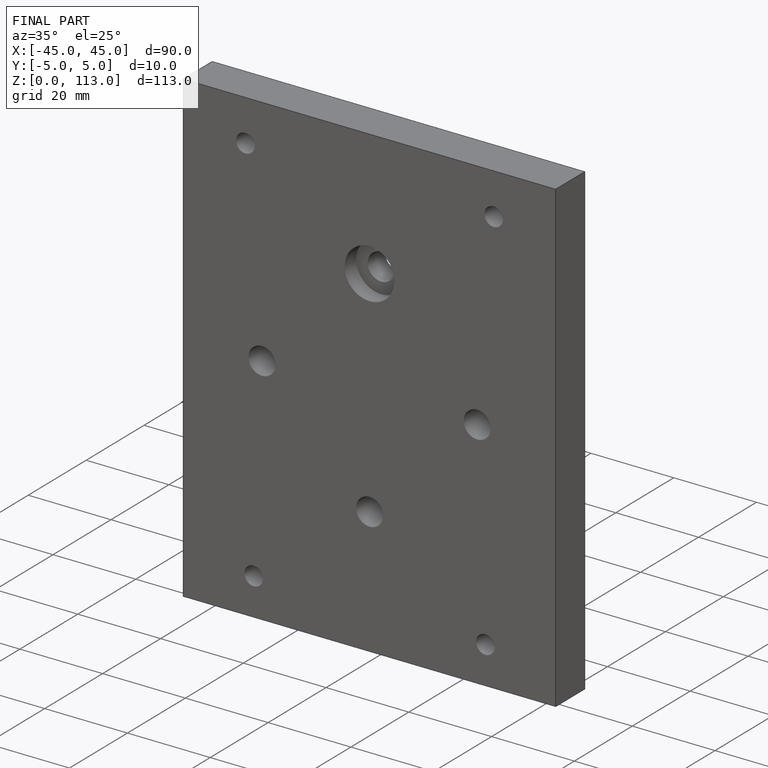
[diagram: finished part — iso view with bounding-box wireframe]
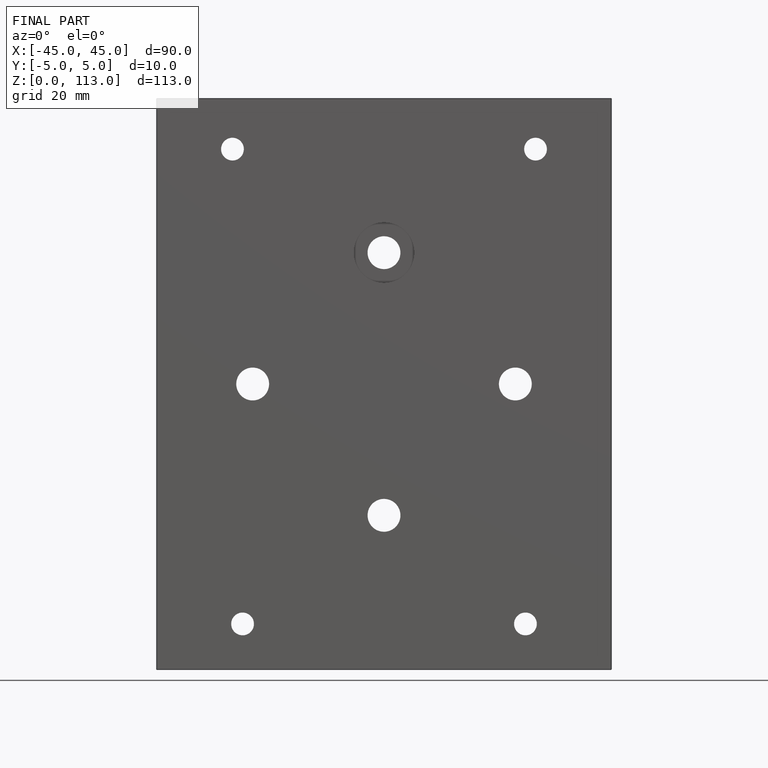
[diagram: finished part — front view with bounding-box wireframe]
